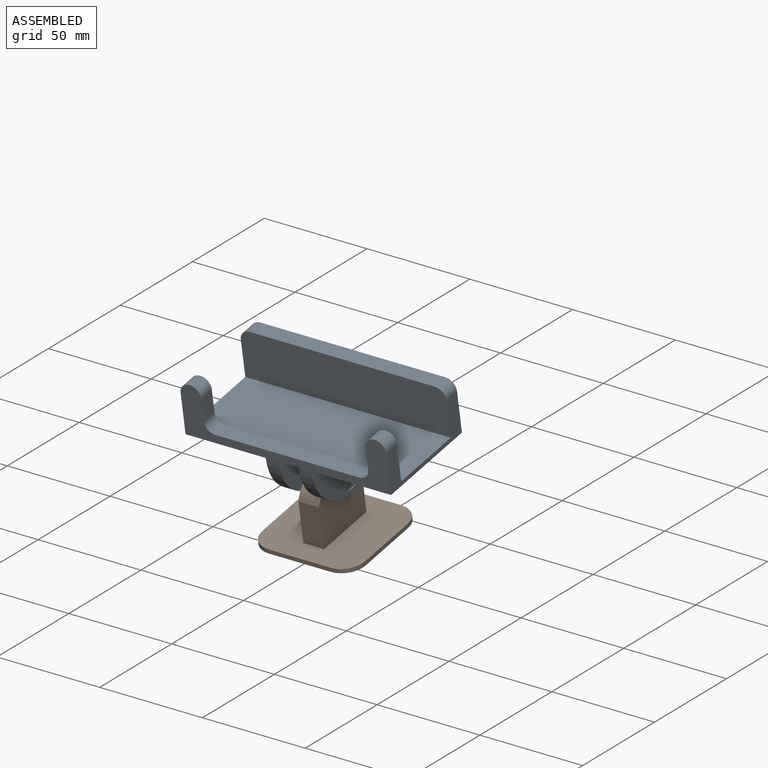
[diagram: assembled view]
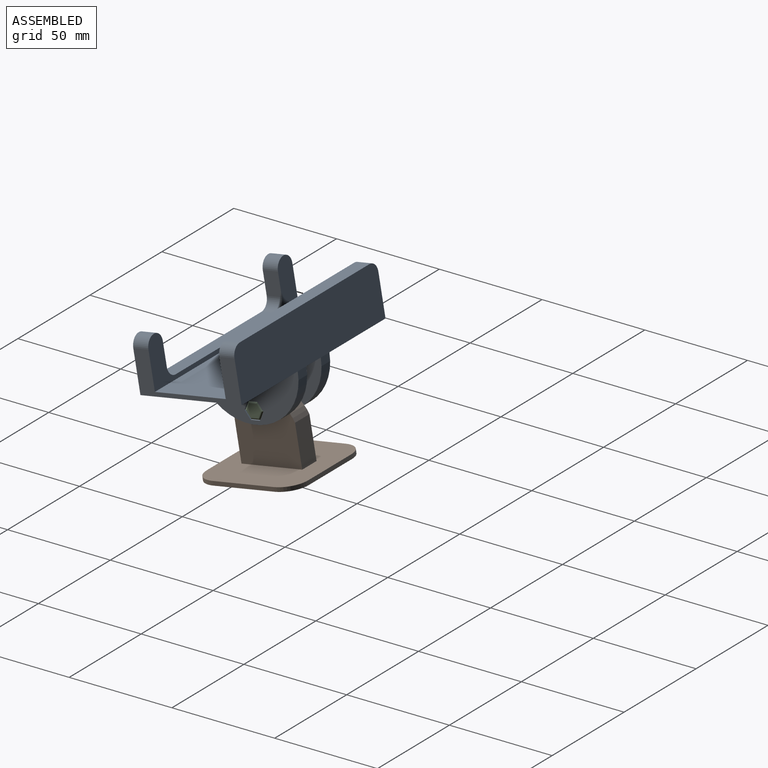
[diagram: assembled view, second angle]
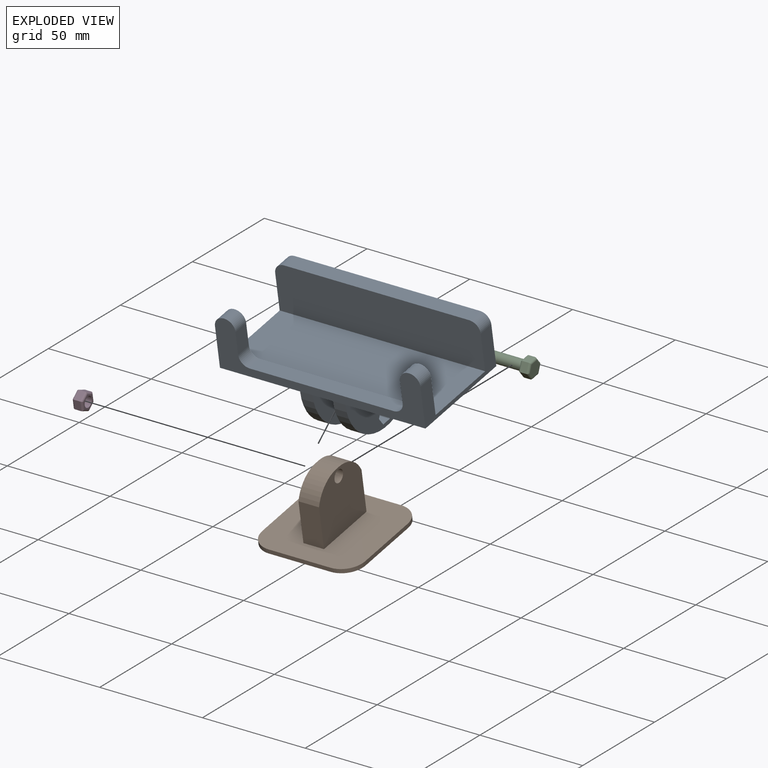
[diagram: exploded view]
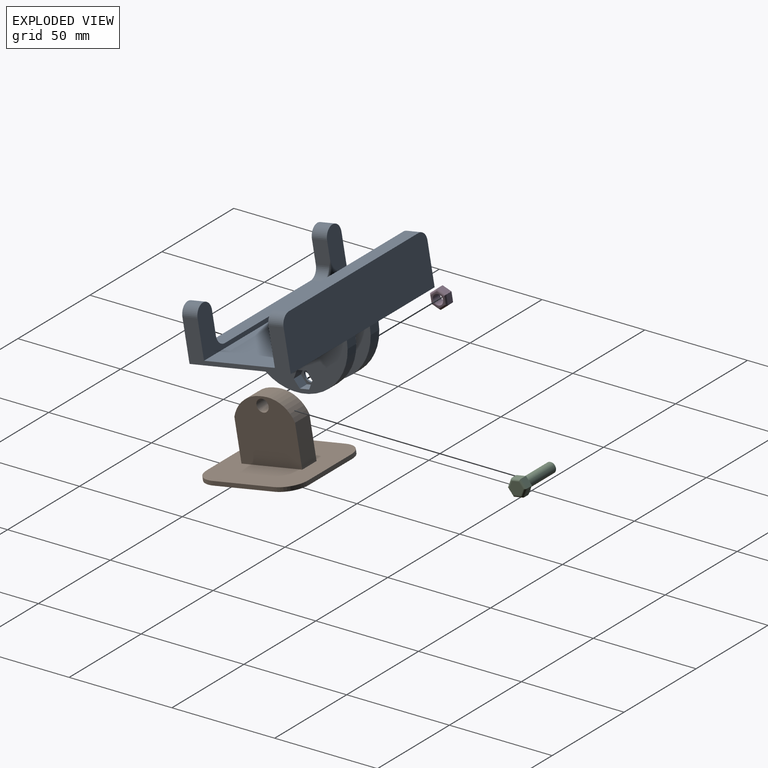
[diagram: exploded view, second angle]
ASSEMBLY  parts=4 mates=3
PART A: 35 faces, bbox 100x50x50 mm
  f0: plane 100x23mm, normal (0,1,0), area 609.3mm2, adj f3,f4,f9,f21,f22,f23,f24,f25
  f1: plane 50x10mm, normal (0,0,-1), area 500mm2, adj f5,f6,f12,f14
  f2: plane 50x39mm, normal (0,0,-1), area 1950mm2, adj f3,f5,f6,f11
  f3: plane 50x20mm, normal (1,0,0), area 370mm2, adj f0,f2,f5,f6,f9,f10,f19,f21
  f4: plane 50x20mm, normal (-1,0,0), area 370mm2, adj f0,f5,f6,f8,f9,f10,f20,f22
  f5: plane 100x25mm, normal (0,-1,0), area 809.3mm2, adj f1,f2,f3,f4,f8,f15,f16,f21
  f6: plane 100x25mm, normal (0,1,0), area 2489.3mm2, adj f1,f2,f3,f4,f7,f8,f15,f16
  f7: plane 90x7.5mm, normal (0,0,1), area 675mm2, adj f6,f10,f19,f20
  f8: plane 50x39mm, normal (0,0,-1), area 1950mm2, adj f4,f5,f6,f13
  f9: plane 100x35mm, normal (0,0,1), area 3500mm2, adj f0,f3,f4,f10
  f10: plane 100x23mm, normal (0,-1,0), area 2289.3mm2, adj f3,f4,f7,f9,f19,f20
  f11: plane 50x25mm, normal (1,0,0), area 926.3mm2, adj f2,f15,f29,f30,f31,f32,f33,f34
  f12: plane 50x25mm, normal (-1,0,0), area 953.5mm2, adj f1,f15,f18
  f13: plane 50x25mm, normal (-1,0,0), area 953.5mm2, adj f8,f16,f17
  f14: plane 50x25mm, normal (1,0,0), area 953.5mm2, adj f1,f16,f17
  f15: cylinder r=25mm len=50mm, axis (1,0,0), area 471.2mm2, adj f5,f6,f11,f12
  f16: cylinder r=25mm len=50mm, axis (-1,0,0), area 471.2mm2, adj f5,f6,f13,f14
  f17: cylinder r=3mm len=6mm, axis (1,0,0), area 113.1mm2, adj f13,f14
  f18: cylinder r=3mm len=6mm, axis (1,0,0), area 18.8mm2, adj f12,f28
  f19: cylinder r=5mm len=7.5mm, axis (0,-1,0), area 58.9mm2, adj f3,f6,f7,f10
  f20: cylinder r=5mm len=7.5mm, axis (0,1,0), area 58.9mm2, adj f4,f6,f7,f10
  f21: cylinder r=5mm len=10mm, axis (0,-1,0), area 117.8mm2, adj f0,f3,f5,f25
  f22: cylinder r=5mm len=10mm, axis (0,1,0), area 117.8mm2, adj f0,f4,f5,f23
  f23: plane 11x7.5mm, normal (1,0,0), area 82.5mm2, adj f0,f5,f22,f26
  f24: plane 70x7.5mm, normal (0,0,1), area 525mm2, adj f0,f5,f26,f27
  f25: plane 11x7.5mm, normal (-1,0,0), area 82.5mm2, adj f0,f5,f21,f27
  f26: cylinder r=5mm len=7.5mm, axis (0,1,0), area 58.9mm2, adj f0,f5,f23,f24
  f27: cylinder r=5mm len=7.5mm, axis (0,-1,0), area 58.9mm2, adj f0,f5,f24,f25
  f28: plane 9.24x8mm, normal (1,0,0), area 27.2mm2, adj f18,f29,f30,f31,f32,f33,f34
  f29: plane 5x4mm, normal (0,-0.87,0.5), area 23.1mm2, adj f11,f28,f30,f34
  f30: plane 5x4.62mm, normal (0,0,1), area 23.1mm2, adj f11,f28,f29,f31
  f31: plane 5x4mm, normal (0,0.87,0.5), area 23.1mm2, adj f11,f28,f30,f32
  f32: plane 5x4mm, normal (0,0.87,-0.5), area 23.1mm2, adj f11,f28,f31,f33
  f33: plane 5x4.62mm, normal (0,0,-1), area 23.1mm2, adj f11,f28,f32,f34
  f34: plane 5x4mm, normal (0,-0.87,-0.5), area 23.1mm2, adj f11,f28,f29,f33
PART B: 18 faces, bbox 50x50x32 mm
  f0: plane 30x30mm, normal (1,0,0), area 795.1mm2, adj f2,f3,f4,f5,f6,f7,f8
  f1: plane 30x30mm, normal (-1,0,0), area 795.1mm2, adj f2,f3,f4,f5,f6,f7,f8
  f2: plane 10x1.72mm, normal (0,0,1), area 17.2mm2, adj f0,f1,f3,f4
  f3: cylinder r=15mm len=14.14mm, axis (-1,0,0), area 184.6mm2, adj f0,f1,f2,f7
  f4: cylinder r=15mm len=14.14mm, axis (-1,0,0), area 184.6mm2, adj f0,f1,f2,f6
  f5: cylinder r=3mm len=10mm, axis (1,0,0), area 188.5mm2, adj f0,f1
  f6: plane 20x10mm, normal (0,-1,0), area 200mm2, adj f0,f1,f4,f8
  f7: plane 20x10mm, normal (0,1,0), area 200mm2, adj f0,f1,f3,f8
  f8: plane 50x50mm, normal (0,0,1), area 2114.2mm2, adj f0,f1,f6,f7,f9,f10,f11,f12
  f9: plane 30x2mm, normal (0,1,0), area 60mm2, adj f8,f13,f14,f17
  f10: plane 30x2mm, normal (1,0,0), area 60mm2, adj f8,f13,f14,f15
  f11: plane 30x2mm, normal (0,-1,0), area 60mm2, adj f8,f13,f15,f16
  f12: plane 30x2mm, normal (-1,0,0), area 60mm2, adj f8,f13,f16,f17
  f13: plane 50x50mm, normal (0,0,-1), area 2414.2mm2, adj f9,f10,f11,f12,f14,f15,f16,f17
  f14: cylinder r=10mm len=10mm, axis (0,0,-1), area 31.4mm2, adj f8,f9,f10,f13
  f15: cylinder r=10mm len=10mm, axis (0,0,1), area 31.4mm2, adj f8,f10,f11,f13
  f16: cylinder r=10mm len=10mm, axis (0,0,-1), area 31.4mm2, adj f8,f11,f12,f13
  f17: cylinder r=10mm len=10mm, axis (0,0,1), area 31.4mm2, adj f8,f9,f12,f13
PART C: 23 faces, bbox 9.2x8x25 mm
  f0: plane 4x3mm, normal (0.87,0.5,0), area 13.9mm2, adj f1,f5,f13,f19
  f1: plane 4.62x3mm, normal (0,1,0), area 13.9mm2, adj f0,f2,f11,f17
  f2: plane 4x3mm, normal (-0.87,0.5,0), area 13.9mm2, adj f1,f3,f12,f18
  f3: plane 4x3mm, normal (-0.87,-0.5,0), area 13.9mm2, adj f2,f4,f14,f20
  f4: plane 4.62x3mm, normal (0,-1,0), area 13.9mm2, adj f3,f5,f16,f22
  f5: plane 4x3mm, normal (0.87,-0.5,0), area 13.9mm2, adj f0,f4,f15,f21
  f6: plane 6.93x6mm, normal (0,0,1), area 11.5mm2, adj f8,f17,f18,f19,f20,f21,f22
  f7: plane 6.93x6mm, normal (0,0,-1), area 31.2mm2, adj f11,f12,f13,f14,f15,f16
  f8: cylinder r=2.5mm len=19mm, axis (0,0,-1), area 298.5mm2, adj f6,f10
  f9: plane 3x3mm, normal (0,0,1), area 7.1mm2, adj f10
  f10: cone r=1.5mm half-angle=45deg, axis (0,0,-1), area 17.8mm2, adj f8,f9
  f11: cylinder r=1mm len=4.62mm, axis (-1,0,0), area 6.6mm2, adj f1,f7,f12,f13
  f12: cylinder r=1mm len=4.5mm, axis (-0.5,-0.87,0), area 6.6mm2, adj f2,f7,f11,f14
  f13: cylinder r=1mm len=4.5mm, axis (-0.5,0.87,0), area 6.6mm2, adj f0,f7,f11,f15
  f14: cylinder r=1mm len=4.5mm, axis (0.5,-0.87,0), area 6.6mm2, adj f3,f7,f12,f16
  f15: cylinder r=1mm len=4.5mm, axis (0.5,0.87,0), area 6.6mm2, adj f5,f7,f13,f16
  f16: cylinder r=1mm len=4.62mm, axis (1,0,0), area 6.6mm2, adj f4,f7,f14,f15
  f17: cylinder r=1mm len=4.62mm, axis (1,0,0), area 6.6mm2, adj f1,f6,f18,f19
  f18: cylinder r=1mm len=4.5mm, axis (0.5,0.87,0), area 6.6mm2, adj f2,f6,f17,f20
  f19: cylinder r=1mm len=4.5mm, axis (0.5,-0.87,0), area 6.6mm2, adj f0,f6,f17,f21
  f20: cylinder r=1mm len=4.5mm, axis (-0.5,0.87,0), area 6.6mm2, adj f3,f6,f18,f22
  f21: cylinder r=1mm len=4.5mm, axis (-0.5,-0.87,0), area 6.6mm2, adj f5,f6,f19,f22
  f22: cylinder r=1mm len=4.62mm, axis (-1,0,0), area 6.6mm2, adj f4,f6,f20,f21
PART D: 21 faces, bbox 9.2x8x5 mm
  f0: plane 4x3mm, normal (0.87,0.5,0), area 13.9mm2, adj f1,f6,f11,f17
  f1: plane 4.62x3mm, normal (0,1,0), area 13.9mm2, adj f0,f2,f9,f15
  f2: plane 4x3mm, normal (-0.87,0.5,0), area 13.9mm2, adj f1,f3,f10,f16
  f3: plane 4x3mm, normal (-0.87,-0.5,0), area 13.9mm2, adj f2,f4,f12,f18
  f4: plane 4.62x3mm, normal (0,-1,0), area 13.9mm2, adj f3,f6,f14,f20
  f5: cylinder r=2.5mm len=5mm, axis (0,0,-1), area 78.5mm2, adj f7,f8
  f6: plane 4x3mm, normal (0.87,-0.5,0), area 13.9mm2, adj f0,f4,f13,f19
  f7: plane 6.93x6mm, normal (0,0,1), area 11.5mm2, adj f5,f15,f16,f17,f18,f19,f20
  f8: plane 6.93x6mm, normal (0,0,-1), area 11.5mm2, adj f5,f9,f10,f11,f12,f13,f14
  f9: cylinder r=1mm len=4.62mm, axis (-1,0,0), area 6.6mm2, adj f1,f8,f10,f11
  f10: cylinder r=1mm len=4.5mm, axis (-0.5,-0.87,0), area 6.6mm2, adj f2,f8,f9,f12
  f11: cylinder r=1mm len=4.5mm, axis (-0.5,0.87,0), area 6.6mm2, adj f0,f8,f9,f13
  f12: cylinder r=1mm len=4.5mm, axis (0.5,-0.87,0), area 6.6mm2, adj f3,f8,f10,f14
  f13: cylinder r=1mm len=4.5mm, axis (0.5,0.87,0), area 6.6mm2, adj f6,f8,f11,f14
  f14: cylinder r=1mm len=4.62mm, axis (1,0,0), area 6.6mm2, adj f4,f8,f12,f13
  f15: cylinder r=1mm len=4.62mm, axis (1,0,0), area 6.6mm2, adj f1,f7,f16,f17
  f16: cylinder r=1mm len=4.5mm, axis (0.5,0.87,0), area 6.6mm2, adj f2,f7,f15,f18
  f17: cylinder r=1mm len=4.5mm, axis (0.5,-0.87,0), area 6.6mm2, adj f0,f7,f15,f19
  f18: cylinder r=1mm len=4.5mm, axis (-0.5,0.87,0), area 6.6mm2, adj f3,f7,f16,f20
  f19: cylinder r=1mm len=4.5mm, axis (-0.5,-0.87,0), area 6.6mm2, adj f6,f7,f17,f20
  f20: cylinder r=1mm len=4.62mm, axis (-1,0,0), area 6.6mm2, adj f4,f7,f18,f19
PLACE A rot(axis=(1,0,0),10deg) t=(0.68,4.76,-16.76)mm
PLACE B rot(axis=(1,0,0),10deg) t=(0.68,9.1,-41.38)mm
PLACE C rot(axis=(-0.68,-0.25,0.68),152deg) t=(11.68,8.05,-35.47)mm
PLACE D rot(axis=(0.67,0.31,0.67),145.2deg) t=(-13.32,18.34,-26.84)mm
MATE revolute D.f5 <-> C.f8  axis (-1,0,0) through (-13.32,8.05,-35.47)mm
MATE revolute B.f5 <-> A.f17  axis (1,0,0) through (5.68,8.05,-35.47)mm
MATE fastened C.f4 <-> A.f34  axis (0,0.77,0.64) through (9.18,11.12,-32.9)mm
